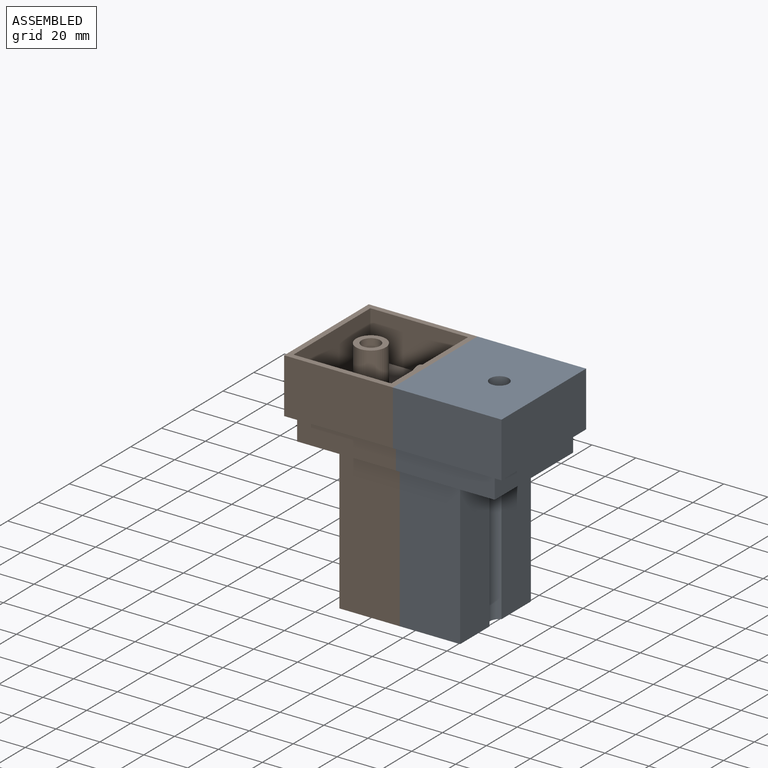
[diagram: assembled view]
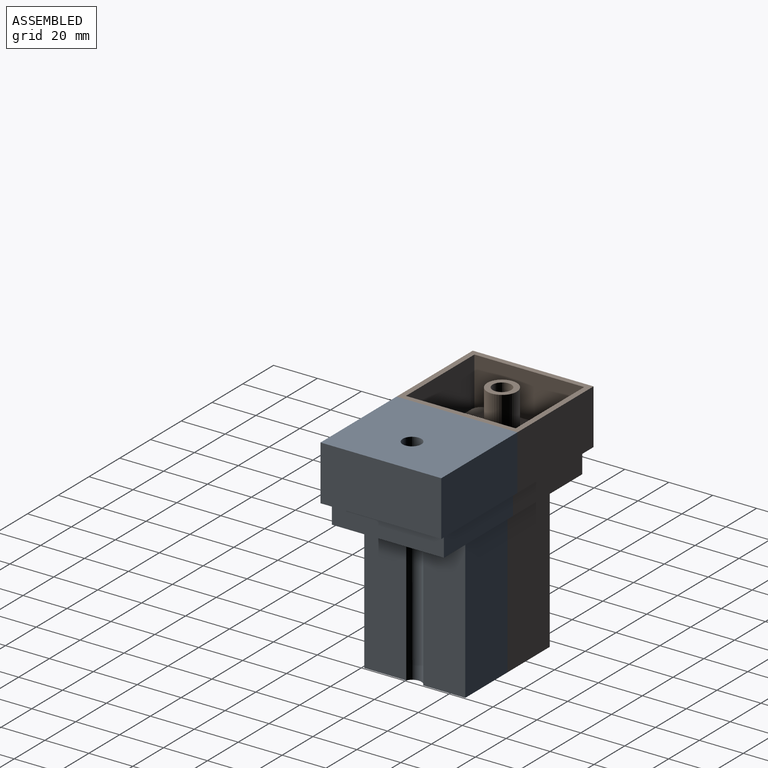
[diagram: assembled view, second angle]
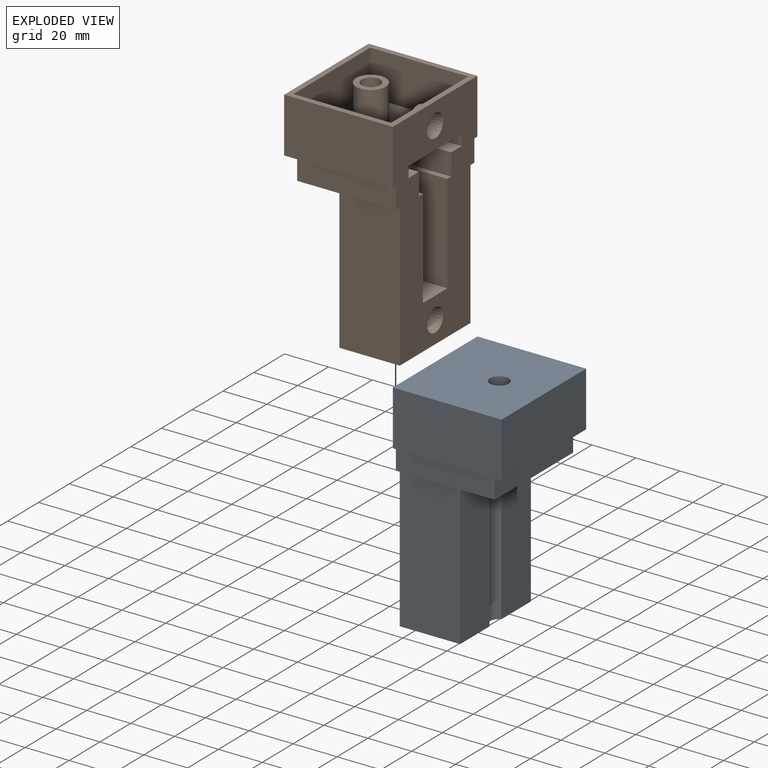
[diagram: exploded view]
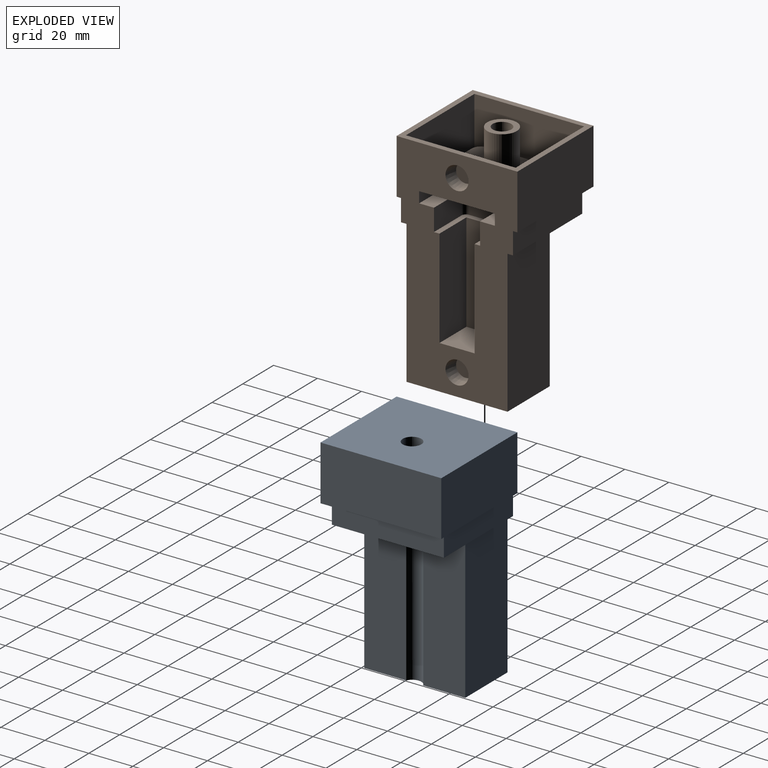
[diagram: exploded view, second angle]
ASSEMBLY  parts=2 mates=3
PART A: 38 faces, bbox 54.5x55x100 mm
  f0: plane 21x20mm, normal (0,0,1), area 138.3mm2, adj f1,f2,f3,f4,f20,f21,f22,f23
  f1: plane 18x10mm, normal (0,1,0), area 180mm2, adj f0,f6,f22,f33
  f2: plane 18x10mm, normal (0,-1,0), area 180mm2, adj f0,f6,f23,f33
  f3: plane 45x17.5mm, normal (0,-1,0), area 787.5mm2, adj f0,f5,f21,f33
  f4: plane 45x17.5mm, normal (0,1,0), area 787.5mm2, adj f0,f5,f21,f33
  f5: plane 17.5x16mm, normal (0,0,1), area 280mm2, adj f3,f4,f21,f33
  f6: plane 39.5x34.5mm, normal (0,0,1), area 886mm2, adj f1,f2,f7,f8,f20,f22,f23,f24
  f7: plane 37.5x5mm, normal (0,1,0), area 187.5mm2, adj f6,f9,f26,f33
  f8: plane 37.5x5mm, normal (0,-1,0), area 187.5mm2, adj f6,f9,f25,f33
  f9: plane 39.5x34.5mm, normal (0,0,-1), area 1304.3mm2, adj f7,f8,f24,f25,f26,f27,f33
  f10: plane 55x49.5mm, normal (0,0,-1), area 427.5mm2, adj f11,f12,f18,f19,f30,f32,f33
  f11: plane 49.5x25mm, normal (0,1,0), area 1237.5mm2, adj f10,f13,f30,f33
  f12: plane 49.5x25mm, normal (0,-1,0), area 1237.5mm2, adj f10,f13,f30,f33
  f13: plane 55x49.5mm, normal (0,0,1), area 2665.8mm2, adj f11,f12,f27,f30,f33
  f14: plane 46x27.5mm, normal (0,0,-1), area 1251.1mm2, adj f15,f16,f28,f29,f31,f33
  f15: plane 65x27.5mm, normal (0,1,0), area 1787.5mm2, adj f14,f17,f29,f33
  f16: plane 65x27.5mm, normal (0,-1,0), area 1787.5mm2, adj f14,f17,f31,f33
  f17: plane 51x45mm, normal (0,0,-1), area 987.2mm2, adj f15,f16,f18,f19,f28,f29,f31,f32
  f18: plane 45x10mm, normal (0,-1,0), area 450mm2, adj f10,f17,f32,f33
  f19: plane 45x10mm, normal (0,1,0), area 450mm2, adj f10,f17,f32,f33
  f20: plane 17x10mm, normal (1,0,0), area 170mm2, adj f0,f6,f22,f23
  f21: plane 45x16mm, normal (1,0,0), area 720mm2, adj f0,f3,f4,f5
  f22: cylinder r=2mm len=10mm, axis (0,0,-1), area 31.4mm2, adj f0,f1,f6,f20
  f23: cylinder r=2mm len=10mm, axis (0,0,1), area 31.4mm2, adj f0,f2,f6,f20
  f24: plane 30.5x5mm, normal (1,0,0), area 152.5mm2, adj f6,f9,f25,f26
  f25: cylinder r=2mm len=5mm, axis (0,0,1), area 15.7mm2, adj f6,f8,f9,f24
  f26: cylinder r=2mm len=5mm, axis (0,0,-1), area 15.7mm2, adj f6,f7,f9,f24
  f27: cylinder r=4.25mm len=20mm, axis (0,0,-1), area 534.1mm2, adj f9,f13
  f28: cylinder r=4.25mm len=75mm, axis (0,0,-1), area 900mm2, adj f6,f14,f17,f29,f31
  f29: plane 65x19.13mm, normal (-1,0,0), area 1243.4mm2, adj f14,f15,f17,f28
  f30: plane 55x25mm, normal (-1,0,0), area 1375mm2, adj f10,f11,f12,f13
  f31: plane 65x19.13mm, normal (-1,0,0), area 1243.4mm2, adj f14,f16,f17,f28
  f32: plane 51x10mm, normal (-1,0,0), area 510mm2, adj f10,f17,f18,f19
  f33: plane 100x55mm, normal (1,0,0), area 3615.4mm2, adj f0,f1,f2,f3,f4,f5,f6,f7
  f34: cone r=5mm half-angle=10deg, axis (-1,0,0), area 145.4mm2, adj f33,f35
  f35: plane 8.24x8.24mm, normal (1,0,0), area 53.3mm2, adj f34
  f36: cone r=5mm half-angle=10deg, axis (-1,0,0), area 145.4mm2, adj f33,f37
  f37: plane 8.24x8.24mm, normal (1,0,0), area 53.3mm2, adj f36
PART B: 76 faces, bbox 49.5x55x100 mm
  f0: plane 13.5x13.5mm, normal (0,0,1), area 86.4mm2, adj f28,f65
  f1: plane 55x49.5mm, normal (0,0,1), area 497.5mm2, adj f13,f14,f31,f34,f50,f51,f68,f71
  f2: plane 21x20mm, normal (0,0,1), area 138.3mm2, adj f3,f4,f5,f6,f21,f22,f23,f24
  f3: plane 18x10mm, normal (0,1,0), area 180mm2, adj f2,f8,f23,f34
  f4: plane 18x10mm, normal (0,-1,0), area 180mm2, adj f2,f8,f24,f34
  f5: plane 45x17.5mm, normal (0,-1,0), area 787.5mm2, adj f2,f7,f22,f34
  f6: plane 45x17.5mm, normal (0,1,0), area 787.5mm2, adj f2,f7,f22,f34
  f7: plane 17.5x16mm, normal (0,0,1), area 280mm2, adj f5,f6,f22,f34
  f8: plane 39.5x34.5mm, normal (0,0,1), area 886mm2, adj f3,f4,f9,f10,f21,f23,f24,f25
  f9: plane 37.5x5mm, normal (0,1,0), area 187.5mm2, adj f8,f11,f27,f34
  f10: plane 37.5x5mm, normal (0,-1,0), area 187.5mm2, adj f8,f11,f26,f34
  f11: plane 39.5x34.5mm, normal (0,0,-1), area 1304.3mm2, adj f9,f10,f25,f26,f27,f28,f34
  f12: plane 55x49.5mm, normal (0,0,-1), area 427.5mm2, adj f13,f14,f19,f20,f31,f33,f34
  f13: plane 49.5x25mm, normal (0,1,0), area 1237.5mm2, adj f1,f12,f31,f34
  f14: plane 49.5x25mm, normal (0,-1,0), area 1237.5mm2, adj f1,f12,f31,f34
  f15: plane 46x27.5mm, normal (0,0,-1), area 1251.1mm2, adj f16,f17,f29,f30,f32,f34
  f16: plane 65x27.5mm, normal (0,1,0), area 1787.5mm2, adj f15,f18,f30,f34
  f17: plane 65x27.5mm, normal (0,-1,0), area 1787.5mm2, adj f15,f18,f32,f34
  f18: plane 51x45mm, normal (0,0,-1), area 987.2mm2, adj f16,f17,f19,f20,f29,f30,f32,f33
  f19: plane 45x10mm, normal (0,-1,0), area 450mm2, adj f12,f18,f33,f34
  f20: plane 45x10mm, normal (0,1,0), area 450mm2, adj f12,f18,f33,f34
  f21: plane 17x10mm, normal (1,0,0), area 170mm2, adj f2,f8,f23,f24
  f22: plane 45x16mm, normal (1,0,0), area 720mm2, adj f2,f5,f6,f7
  f23: cylinder r=2mm len=10mm, axis (0,0,-1), area 31.4mm2, adj f2,f3,f8,f21
  f24: cylinder r=2mm len=10mm, axis (0,0,1), area 31.4mm2, adj f2,f4,f8,f21
  f25: plane 30.5x5mm, normal (1,0,0), area 152.5mm2, adj f8,f11,f26,f27
  f26: cylinder r=2mm len=5mm, axis (0,0,1), area 15.7mm2, adj f8,f10,f11,f25
  f27: cylinder r=2mm len=5mm, axis (0,0,-1), area 15.7mm2, adj f8,f9,f11,f25
  f28: cylinder r=4.25mm len=20mm, axis (0,0,-1), area 534.1mm2, adj f0,f11
  f29: cylinder r=4.25mm len=75mm, axis (0,0,-1), area 900mm2, adj f8,f15,f18,f30,f32
  f30: plane 65x19.13mm, normal (-1,0,0), area 1243.4mm2, adj f15,f16,f18,f29
  f31: plane 55x25mm, normal (-1,0,0), area 1375mm2, adj f1,f12,f13,f14
  f32: plane 65x19.13mm, normal (-1,0,0), area 1243.4mm2, adj f15,f17,f18,f29
  f33: plane 51x10mm, normal (-1,0,0), area 510mm2, adj f12,f18,f19,f20
  f34: plane 100x55mm, normal (1,0,0), area 3599.3mm2, adj f1,f2,f3,f4,f5,f6,f7,f8
  f35: cone r=5.25mm half-angle=10deg, axis (1,0,0), area 167.2mm2, adj f34,f36
  f36: plane 8.56x8.56mm, normal (1,0,0), area 57.6mm2, adj f35
  f37: cone r=5.25mm half-angle=10deg, axis (1,0,0), area 167.2mm2, adj f34,f38
  f38: plane 8.56x8.56mm, normal (1,0,0), area 57.6mm2, adj f37
  f39: plane 26x20mm, normal (0,0,-1), area 143.8mm2, adj f40,f41,f42,f43,f58,f59,f60,f61
  f40: plane 15.5x10mm, normal (0,-1,0), area 155mm2, adj f39,f45,f60,f71
  f41: plane 15.5x10mm, normal (0,1,0), area 155mm2, adj f39,f45,f61,f71
  f42: plane 45x17.5mm, normal (0,1,0), area 787.5mm2, adj f39,f44,f59,f71
  f43: plane 45x17.5mm, normal (0,-1,0), area 787.5mm2, adj f39,f44,f59,f71
  f44: plane 21x17.5mm, normal (0,0,-1), area 367.5mm2, adj f42,f43,f59,f71
  f45: plane 39.5x39.5mm, normal (0,0,-1), area 897.1mm2, adj f40,f41,f46,f47,f58,f60,f61,f62
  f46: plane 35x10mm, normal (0,-1,0), area 350mm2, adj f45,f48,f64,f71
  f47: plane 35x10mm, normal (0,1,0), area 350mm2, adj f45,f48,f63,f71
  f48: plane 39.5x39.5mm, normal (0,0,1), area 1408.4mm2, adj f46,f47,f62,f63,f64,f65,f71
  f49: plane 50x44.5mm, normal (0,0,1), area 385mm2, adj f50,f51,f56,f57,f68,f70,f71
  f50: plane 44.5x22.5mm, normal (0,-1,0), area 1001.3mm2, adj f1,f49,f68,f71
  f51: plane 44.5x22.5mm, normal (0,1,0), area 1001.3mm2, adj f1,f49,f68,f71
  f52: plane 41x22.5mm, normal (0,0,1), area 904.3mm2, adj f53,f54,f66,f67,f69,f71
  f53: plane 65x22.5mm, normal (0,-1,0), area 1462.5mm2, adj f52,f55,f67,f71
  f54: plane 65x22.5mm, normal (0,1,0), area 1462.5mm2, adj f52,f55,f69,f71
  f55: plane 46x40mm, normal (0,0,1), area 792.6mm2, adj f53,f54,f56,f57,f66,f67,f69,f70
  f56: plane 40x10mm, normal (0,1,0), area 400mm2, adj f49,f55,f70,f71
  f57: plane 40x10mm, normal (0,-1,0), area 400mm2, adj f49,f55,f70,f71
  f58: plane 17x10mm, normal (-1,0,0), area 170mm2, adj f39,f45,f60,f61
  f59: plane 45x21mm, normal (-1,0,0), area 945mm2, adj f39,f42,f43,f44
  f60: cylinder r=4.5mm len=10mm, axis (0,0,-1), area 70.7mm2, adj f39,f40,f45,f58
  f61: cylinder r=4.5mm len=10mm, axis (0,0,1), area 70.7mm2, adj f39,f41,f45,f58
  f62: plane 30.5x10mm, normal (-1,0,0), area 305mm2, adj f45,f48,f63,f64
  f63: cylinder r=4.5mm len=10mm, axis (0,0,1), area 70.7mm2, adj f45,f47,f48,f62
  f64: cylinder r=4.5mm len=10mm, axis (0,0,-1), area 70.7mm2, adj f45,f46,f48,f62
  f65: cylinder r=6.75mm len=17.5mm, axis (0,0,-1), area 742.2mm2, adj f0,f48
  f66: cylinder r=6.75mm len=70mm, axis (0,0,-1), area 992.2mm2, adj f45,f52,f55,f67,f69
  f67: plane 65x15.26mm, normal (1,0,0), area 991.8mm2, adj f52,f53,f55,f66
  f68: plane 50x22.5mm, normal (1,0,0), area 1125mm2, adj f1,f49,f50,f51
  f69: plane 65x15.26mm, normal (1,0,0), area 991.8mm2, adj f52,f54,f55,f66
  f70: plane 46x10mm, normal (1,0,0), area 460mm2, adj f49,f55,f56,f57
  f71: plane 97.5x50mm, normal (-1,0,0), area 2310.8mm2, adj f1,f39,f40,f41,f42,f43,f44,f45
  f72: cone r=7.71mm half-angle=10deg, axis (1,0,0), area 240.8mm2, adj f71,f73
  f73: plane 12.76x12.76mm, normal (-1,0,0), area 127.8mm2, adj f72
  f74: cone r=7.71mm half-angle=10deg, axis (1,0,0), area 240.8mm2, adj f71,f75
  f75: plane 12.76x12.76mm, normal (-1,0,0), area 127.8mm2, adj f74
PLACE A rot(axis=(0,0,1),180deg) t=(-64.1,46.77,10.67)mm
PLACE B t=(-64.1,46.77,10.67)mm
MATE planar A.f27 <-> B.f28  axis (0,0,1) through (-34.84,46.77,110.67)mm
MATE planar A.f33 <-> B.f34  axis (-1,0,0) through (-64.1,69.77,10.67)mm
MATE planar A.f11 <-> B.f14  axis (0,-1,0) through (-39.35,19.27,98.17)mm
